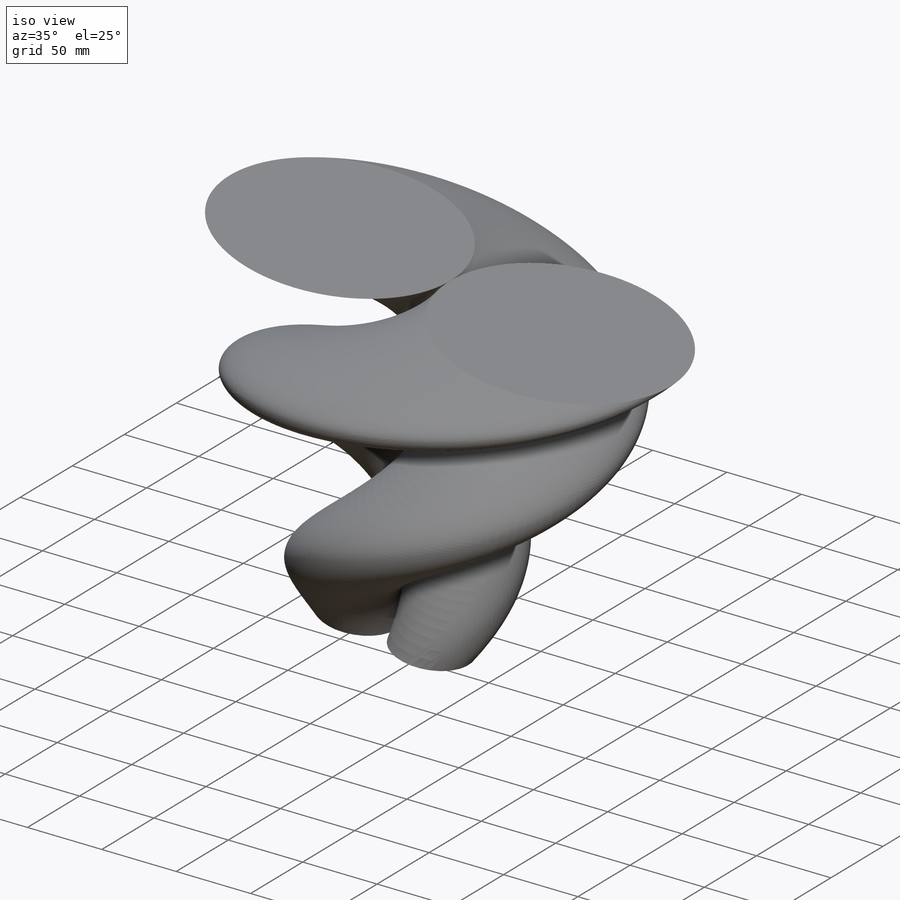
[diagram: iso view]
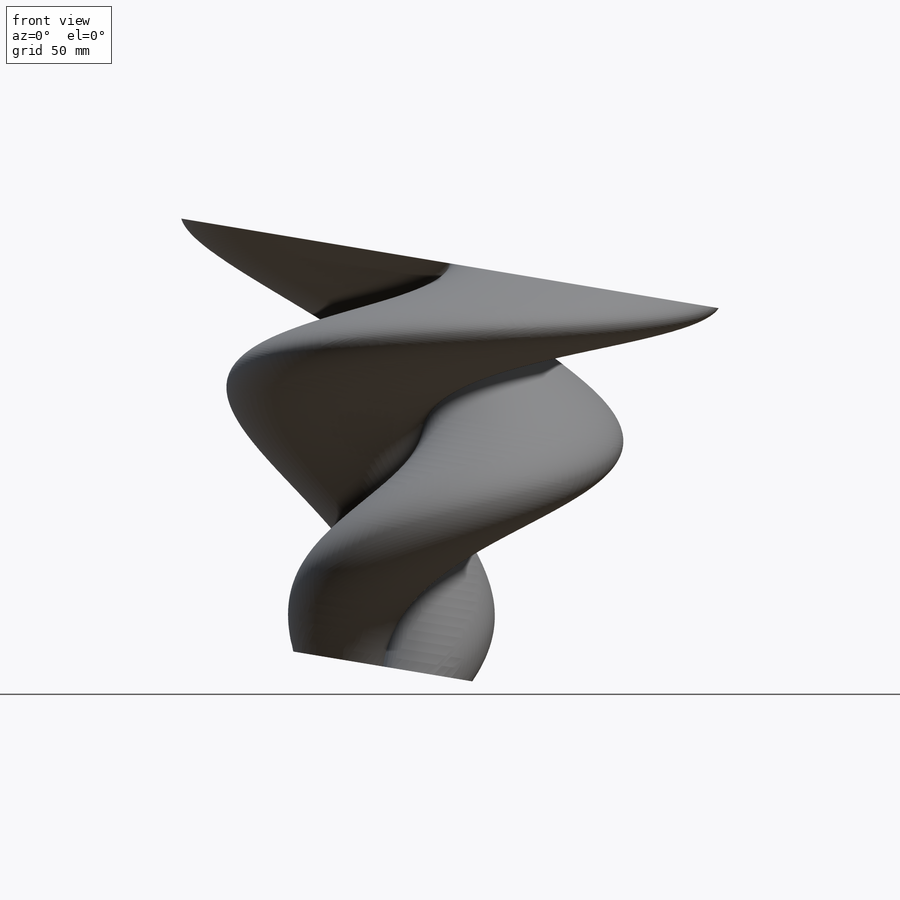
[diagram: front view]
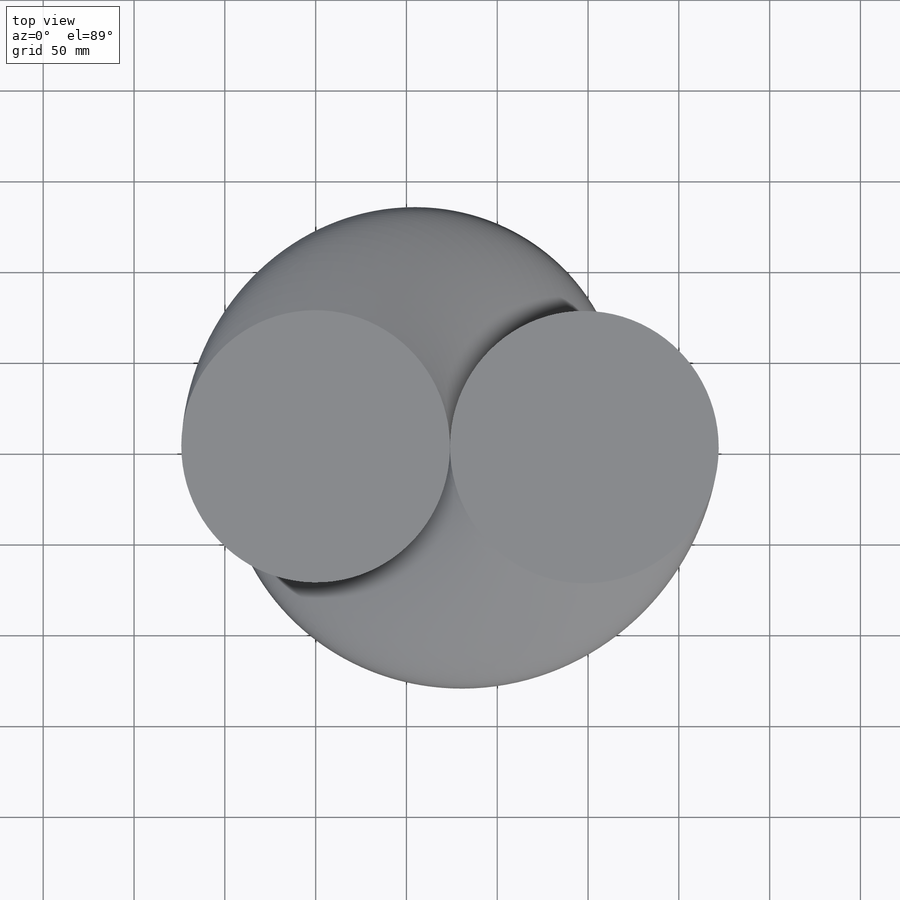
[diagram: top view]
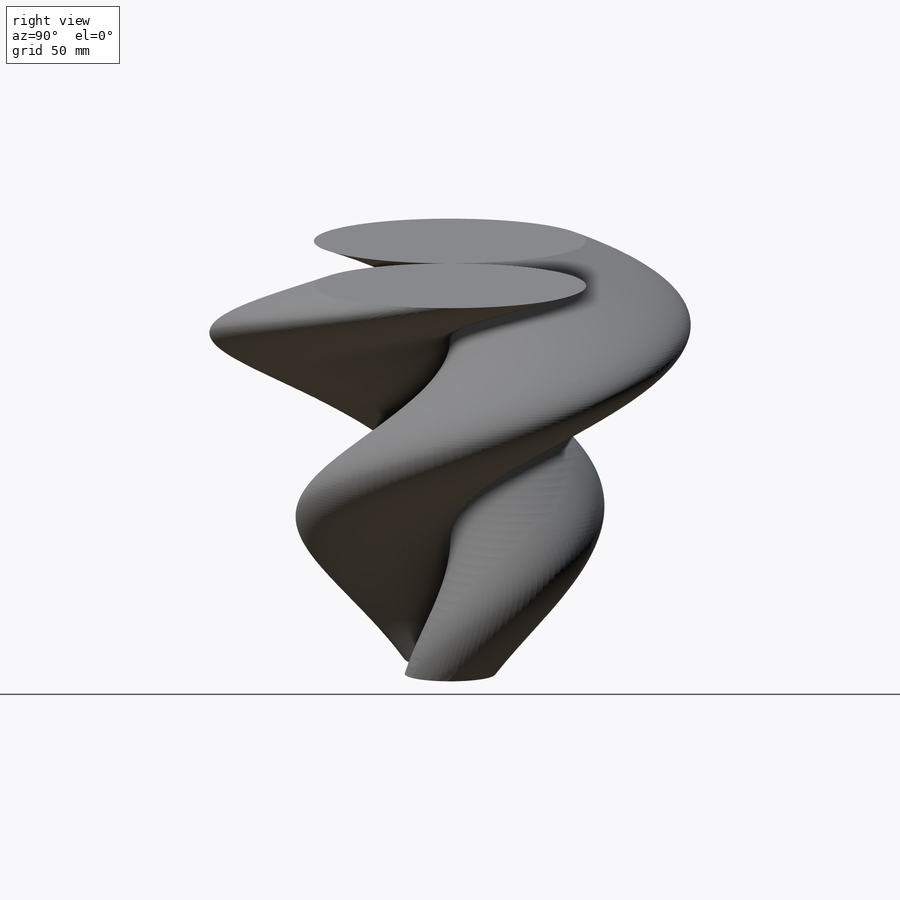
[diagram: right view]
SOLIDWORKS PART (.sldprt)
format: sldprt  version: not decoded by parser v0  size: 651,776 bytes
history: native  units: mm
features: plane x4, sketch x4, material x1, helix x1, sweep x1, pattern_circular x1 (+10 scaffold rows collapsed)
feature tree (22):
  scaffold x10  (default folders/planes/origin — collapsed)
  material  "Material <nicht festgelegt>"
  plane  "Ebene vorne"
  plane  "Ebene oben"
  plane  "Ebene rechts"
  sketch  "Layout"  dims[c1.D2=200.0mm c1.D1=~456.20719mm c2.D2=300.0mm c2.D3=75.0mm c2.D4=25.0mm c2.D5=75.0mm]
  plane  "EbeneProfil"
  sketch  "SkizzeHelix"  dims[D1=~133.966562mm]
  helix  "Spirale/Helix1"  Pitch=225mm
  sketch  "SkizzeKreis"  dims[D1=150.0mm]
  sketch  "SkizzeLK"
  sweep  "Bein"
  pattern_circular  "Kreismuster2"  Count=2  [1 undecoded]
decode coverage: 5 of 7 modeling features carry decoded parameters
note: ~ marks probable driven/reference dimensions
note: 1 parameter value undecoded
note: suppression state not decoded; provenance and decode notes live in map.json
